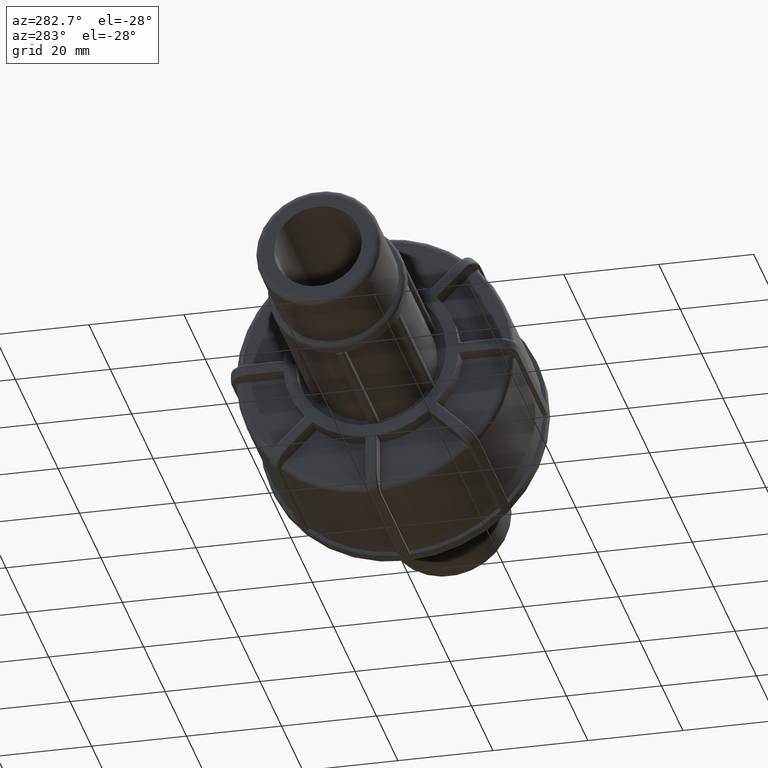
[diagram: clean part render]
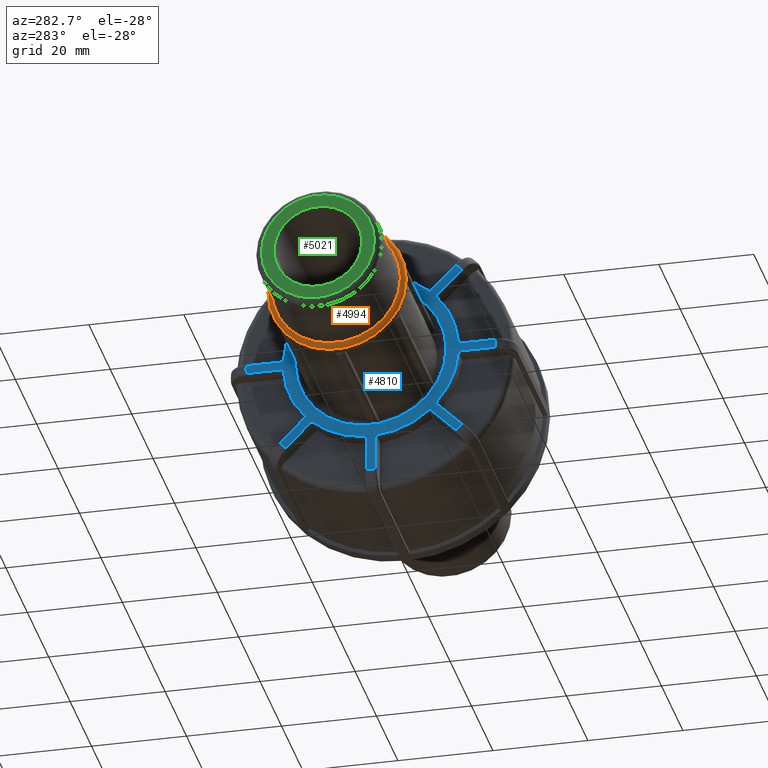
[diagram: same view with three faces highlighted in distinct colors, each labeled with its STEP entity id]
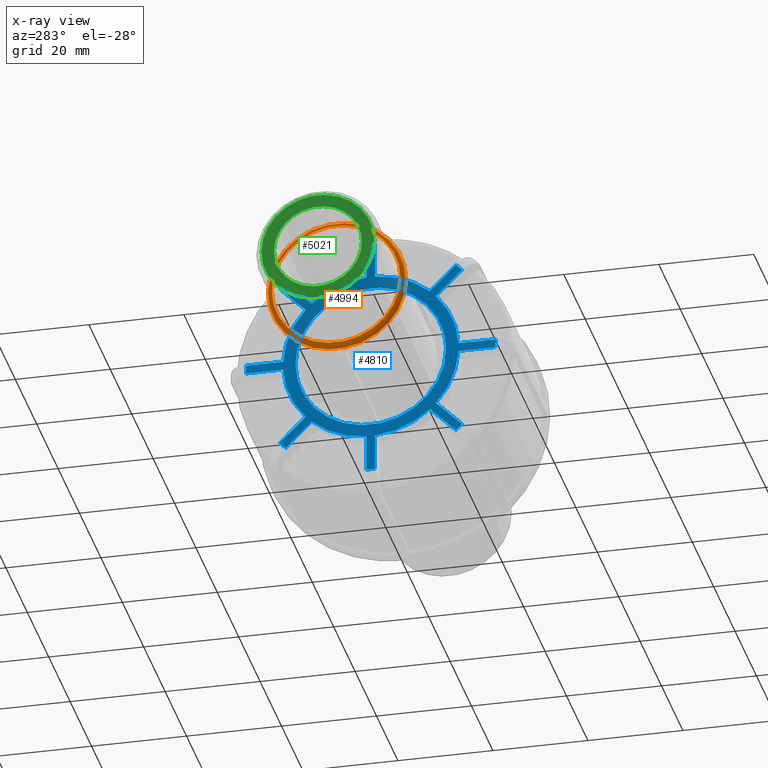
[diagram: x-ray of the same camera — body ghosted, the three highlighted faces saturated]
A machine part, auxiliary view with three faces highlighted in distinct colors.
The next image is the same camera in x-ray (body ghosted, the three faces saturated) — at least one of them is partly hidden behind the body in this view.
Their STEP definitions:

[orange] entity #4994 — the highlighted toroidal blend (fillet) surface has major radius 13.5426 mm and minor (blend) radius 1 mm.
#53=FACE_BOUND('',#759,.T.);
#181=TOROIDAL_SURFACE('',#5548,13.54255,1.);
#455=FACE_OUTER_BOUND('',#758,.T.);
#758=EDGE_LOOP('',(#4439));
#759=EDGE_LOOP('',(#4440));
#1853=CIRCLE('',#5549,13.54255);
#1854=CIRCLE('',#5550,14.54255);
#2335=VERTEX_POINT('',#9983);
#2336=VERTEX_POINT('',#9985);
#3069=EDGE_CURVE('',#2335,#2335,#1853,.T.);
#3070=EDGE_CURVE('',#2336,#2336,#1854,.T.);
#4439=ORIENTED_EDGE('',*,*,#3069,.T.);
#4440=ORIENTED_EDGE('',*,*,#3070,.T.);
#4994=ADVANCED_FACE('',(#455,#53),#181,.T.);
#5548=AXIS2_PLACEMENT_3D('',#9982,#6970,#6971);
#5549=AXIS2_PLACEMENT_3D('',#9984,#6972,#6973);
#5550=AXIS2_PLACEMENT_3D('',#9986,#6974,#6975);
#6970=DIRECTION('center_axis',(1.,0.,0.));
#6971=DIRECTION('ref_axis',(0.,0.,-1.));
#6972=DIRECTION('center_axis',(1.,0.,0.));
#6973=DIRECTION('ref_axis',(0.,-1.,1.83697019872103E-16));
#6974=DIRECTION('center_axis',(-1.,0.,0.));
#6975=DIRECTION('ref_axis',(0.,-1.,1.83697019872103E-16));
#9982=CARTESIAN_POINT('Origin',(-105.5,0.,0.));
#9983=CARTESIAN_POINT('',(-106.5,13.54255,-8.29242025489649E-16));
#9984=CARTESIAN_POINT('Origin',(-106.5,0.,0.));
#9985=CARTESIAN_POINT('',(-105.5,14.54255,-4.45237182723509E-15));
#9986=CARTESIAN_POINT('Origin',(-105.5,0.,0.));

[blue] entity #4810 — the highlighted planar face has unit normal (-1, 0, 0).
#52=FACE_BOUND('',#574,.T.);
#97=PLANE('',#5210);
#271=FACE_OUTER_BOUND('',#573,.T.);
#573=EDGE_LOOP('',(#3520,#3521,#3522,#3523,#3524,#3525,#3526,#3527,#3528,
#3529,#3530,#3531,#3532,#3533,#3534,#3535,#3536,#3537,#3538,#3539,#3540,
#3541,#3542,#3543,#3544,#3545,#3546,#3547,#3548,#3549,#3550,#3551));
#574=EDGE_LOOP('',(#3552));
#1011=LINE('',#7591,#1337);
#1029=LINE('',#7710,#1355);
#1030=LINE('',#7714,#1356);
#1031=LINE('',#7718,#1357);
#1032=LINE('',#7722,#1358);
#1033=LINE('',#7726,#1359);
#1034=LINE('',#7730,#1360);
#1035=LINE('',#7734,#1361);
#1036=LINE('',#7738,#1362);
#1037=LINE('',#7742,#1363);
#1038=LINE('',#7746,#1364);
#1039=LINE('',#7750,#1365);
#1040=LINE('',#7754,#1366);
#1041=LINE('',#7758,#1367);
#1042=LINE('',#7762,#1368);
#1043=LINE('',#7765,#1369);
#1337=VECTOR('',#6022,7.7478697261241);
#1355=VECTOR('',#6088,7.74786972612411);
#1356=VECTOR('',#6091,7.74786972612411);
#1357=VECTOR('',#6094,7.74786972612411);
#1358=VECTOR('',#6097,7.74786972612411);
#1359=VECTOR('',#6100,7.74786972612411);
#1360=VECTOR('',#6103,7.74786972612411);
#1361=VECTOR('',#6106,7.74786972612411);
#1362=VECTOR('',#6109,7.74786972612412);
#1363=VECTOR('',#6112,7.74786972612411);
#1364=VECTOR('',#6115,7.74786972612411);
#1365=VECTOR('',#6118,7.7478697261241);
#1366=VECTOR('',#6121,7.7478697261241);
#1367=VECTOR('',#6124,7.74786972612411);
#1368=VECTOR('',#6127,7.74786972612411);
#1369=VECTOR('',#6130,7.7478697261241);
#1667=CIRCLE('',#5209,26.25);
#1668=CIRCLE('',#5211,18.5087);
#1669=CIRCLE('',#5212,26.25);
#1670=CIRCLE('',#5213,18.5087);
#1671=CIRCLE('',#5214,26.25);
#1672=CIRCLE('',#5215,18.5087);
#1673=CIRCLE('',#5216,26.25);
#1674=CIRCLE('',#5217,18.5087);
#1675=CIRCLE('',#5218,26.25);
#1676=CIRCLE('',#5219,18.5087);
#1677=CIRCLE('',#5220,26.25);
#1678=CIRCLE('',#5221,18.5087);
#1679=CIRCLE('',#5222,26.25);
#1680=CIRCLE('',#5223,18.5087);
#1681=CIRCLE('',#5224,26.25);
#1682=CIRCLE('',#5225,18.5087);
#1683=CIRCLE('',#5226,15.8646);
#1994=VERTEX_POINT('',#7575);
#1997=VERTEX_POINT('',#7580);
#2032=VERTEX_POINT('',#7699);
#2033=VERTEX_POINT('',#7707);
#2034=VERTEX_POINT('',#7709);
#2035=VERTEX_POINT('',#7711);
#2036=VERTEX_POINT('',#7713);
#2037=VERTEX_POINT('',#7715);
#2038=VERTEX_POINT('',#7717);
#2039=VERTEX_POINT('',#7719);
#2040=VERTEX_POINT('',#7721);
#2041=VERTEX_POINT('',#7723);
#2042=VERTEX_POINT('',#7725);
#2043=VERTEX_POINT('',#7727);
#2044=VERTEX_POINT('',#7729);
#2045=VERTEX_POINT('',#7731);
#2046=VERTEX_POINT('',#7733);
#2047=VERTEX_POINT('',#7735);
#2048=VERTEX_POINT('',#7737);
#2049=VERTEX_POINT('',#7739);
#2050=VERTEX_POINT('',#7741);
#2051=VERTEX_POINT('',#7743);
#2052=VERTEX_POINT('',#7745);
#2053=VERTEX_POINT('',#7747);
#2054=VERTEX_POINT('',#7749);
#2055=VERTEX_POINT('',#7751);
#2056=VERTEX_POINT('',#7753);
#2057=VERTEX_POINT('',#7755);
#2058=VERTEX_POINT('',#7757);
#2059=VERTEX_POINT('',#7759);
#2060=VERTEX_POINT('',#7761);
#2061=VERTEX_POINT('',#7763);
#2062=VERTEX_POINT('',#7766);
#2538=EDGE_CURVE('',#1997,#1994,#1011,.T.);
#2576=EDGE_CURVE('',#1994,#2032,#1667,.T.);
#2578=EDGE_CURVE('',#2033,#1997,#1668,.T.);
#2579=EDGE_CURVE('',#2034,#2033,#1029,.T.);
#2580=EDGE_CURVE('',#2035,#2034,#1669,.T.);
#2581=EDGE_CURVE('',#2036,#2035,#1030,.T.);
#2582=EDGE_CURVE('',#2037,#2036,#1670,.T.);
#2583=EDGE_CURVE('',#2038,#2037,#1031,.T.);
#2584=EDGE_CURVE('',#2039,#2038,#1671,.T.);
#2585=EDGE_CURVE('',#2040,#2039,#1032,.T.);
#2586=EDGE_CURVE('',#2041,#2040,#1672,.T.);
#2587=EDGE_CURVE('',#2042,#2041,#1033,.T.);
#2588=EDGE_CURVE('',#2043,#2042,#1673,.T.);
#2589=EDGE_CURVE('',#2044,#2043,#1034,.T.);
#2590=EDGE_CURVE('',#2045,#2044,#1674,.T.);
#2591=EDGE_CURVE('',#2046,#2045,#1035,.T.);
#2592=EDGE_CURVE('',#2047,#2046,#1675,.T.);
#2593=EDGE_CURVE('',#2048,#2047,#1036,.T.);
#2594=EDGE_CURVE('',#2049,#2048,#1676,.T.);
#2595=EDGE_CURVE('',#2050,#2049,#1037,.T.);
#2596=EDGE_CURVE('',#2051,#2050,#1677,.T.);
#2597=EDGE_CURVE('',#2052,#2051,#1038,.T.);
#2598=EDGE_CURVE('',#2053,#2052,#1678,.T.);
#2599=EDGE_CURVE('',#2054,#2053,#1039,.T.);
#2600=EDGE_CURVE('',#2055,#2054,#1679,.T.);
#2601=EDGE_CURVE('',#2056,#2055,#1040,.T.);
#2602=EDGE_CURVE('',#2057,#2056,#1680,.T.);
#2603=EDGE_CURVE('',#2058,#2057,#1041,.T.);
#2604=EDGE_CURVE('',#2059,#2058,#1681,.T.);
#2605=EDGE_CURVE('',#2060,#2059,#1042,.T.);
#2606=EDGE_CURVE('',#2061,#2060,#1682,.T.);
#2607=EDGE_CURVE('',#2032,#2061,#1043,.T.);
#2608=EDGE_CURVE('',#2062,#2062,#1683,.T.);
#3520=ORIENTED_EDGE('',*,*,#2538,.F.);
#3521=ORIENTED_EDGE('',*,*,#2578,.F.);
#3522=ORIENTED_EDGE('',*,*,#2579,.F.);
#3523=ORIENTED_EDGE('',*,*,#2580,.F.);
#3524=ORIENTED_EDGE('',*,*,#2581,.F.);
#3525=ORIENTED_EDGE('',*,*,#2582,.F.);
#3526=ORIENTED_EDGE('',*,*,#2583,.F.);
#3527=ORIENTED_EDGE('',*,*,#2584,.F.);
#3528=ORIENTED_EDGE('',*,*,#2585,.F.);
#3529=ORIENTED_EDGE('',*,*,#2586,.F.);
#3530=ORIENTED_EDGE('',*,*,#2587,.F.);
#3531=ORIENTED_EDGE('',*,*,#2588,.F.);
#3532=ORIENTED_EDGE('',*,*,#2589,.F.);
#3533=ORIENTED_EDGE('',*,*,#2590,.F.);
#3534=ORIENTED_EDGE('',*,*,#2591,.F.);
#3535=ORIENTED_EDGE('',*,*,#2592,.F.);
#3536=ORIENTED_EDGE('',*,*,#2593,.F.);
#3537=ORIENTED_EDGE('',*,*,#2594,.F.);
#3538=ORIENTED_EDGE('',*,*,#2595,.F.);
#3539=ORIENTED_EDGE('',*,*,#2596,.F.);
#3540=ORIENTED_EDGE('',*,*,#2597,.F.);
#3541=ORIENTED_EDGE('',*,*,#2598,.F.);
#3542=ORIENTED_EDGE('',*,*,#2599,.F.);
#3543=ORIENTED_EDGE('',*,*,#2600,.F.);
#3544=ORIENTED_EDGE('',*,*,#2601,.F.);
#3545=ORIENTED_EDGE('',*,*,#2602,.F.);
#3546=ORIENTED_EDGE('',*,*,#2603,.F.);
#3547=ORIENTED_EDGE('',*,*,#2604,.F.);
#3548=ORIENTED_EDGE('',*,*,#2605,.F.);
#3549=ORIENTED_EDGE('',*,*,#2606,.F.);
#3550=ORIENTED_EDGE('',*,*,#2607,.F.);
#3551=ORIENTED_EDGE('',*,*,#2576,.F.);
#3552=ORIENTED_EDGE('',*,*,#2608,.T.);
#4810=ADVANCED_FACE('',(#271,#52),#97,.T.);
#5209=AXIS2_PLACEMENT_3D('',#7700,#6082,#6083);
#5210=AXIS2_PLACEMENT_3D('',#7706,#6084,#6085);
#5211=AXIS2_PLACEMENT_3D('',#7708,#6086,#6087);
#5212=AXIS2_PLACEMENT_3D('',#7712,#6089,#6090);
#5213=AXIS2_PLACEMENT_3D('',#7716,#6092,#6093);
#5214=AXIS2_PLACEMENT_3D('',#7720,#6095,#6096);
#5215=AXIS2_PLACEMENT_3D('',#7724,#6098,#6099);
#5216=AXIS2_PLACEMENT_3D('',#7728,#6101,#6102);
#5217=AXIS2_PLACEMENT_3D('',#7732,#6104,#6105);
#5218=AXIS2_PLACEMENT_3D('',#7736,#6107,#6108);
#5219=AXIS2_PLACEMENT_3D('',#7740,#6110,#6111);
#5220=AXIS2_PLACEMENT_3D('',#7744,#6113,#6114);
#5221=AXIS2_PLACEMENT_3D('',#7748,#6116,#6117);
#5222=AXIS2_PLACEMENT_3D('',#7752,#6119,#6120);
#5223=AXIS2_PLACEMENT_3D('',#7756,#6122,#6123);
#5224=AXIS2_PLACEMENT_3D('',#7760,#6125,#6126);
#5225=AXIS2_PLACEMENT_3D('',#7764,#6128,#6129);
#5226=AXIS2_PLACEMENT_3D('',#7767,#6131,#6132);
#6022=DIRECTION('',(0.,0.707106781186547,-0.707106781186548));
#6082=DIRECTION('center_axis',(1.,0.,0.));
#6083=DIRECTION('ref_axis',(0.,0.707106781186548,-0.707106781186548));
#6084=DIRECTION('center_axis',(-1.,0.,0.));
#6085=DIRECTION('ref_axis',(0.,0.,1.));
#6086=DIRECTION('center_axis',(1.,0.,0.));
#6087=DIRECTION('ref_axis',(0.,0.,-1.));
#6088=DIRECTION('',(0.,2.22044604925031E-16,1.));
#6089=DIRECTION('center_axis',(1.,0.,0.));
#6090=DIRECTION('ref_axis',(0.,5.84358089924088E-17,-1.));
#6091=DIRECTION('',(0.,-2.22044604925031E-16,-1.));
#6092=DIRECTION('center_axis',(1.,0.,0.));
#6093=DIRECTION('ref_axis',(0.,0.,-1.));
#6094=DIRECTION('',(0.,0.707106781186548,0.707106781186547));
#6095=DIRECTION('center_axis',(1.,0.,0.));
#6096=DIRECTION('ref_axis',(0.,-0.707106781186547,-0.707106781186548));
#6097=DIRECTION('',(0.,-0.707106781186548,-0.707106781186547));
#6098=DIRECTION('center_axis',(1.,0.,0.));
#6099=DIRECTION('ref_axis',(0.,0.,-1.));
#6100=DIRECTION('',(0.,1.,0.));
#6101=DIRECTION('center_axis',(1.,0.,0.));
#6102=DIRECTION('ref_axis',(0.,-1.,-5.84358089924088E-17));
#6103=DIRECTION('',(0.,-1.,0.));
#6104=DIRECTION('center_axis',(1.,0.,0.));
#6105=DIRECTION('ref_axis',(0.,0.,-1.));
#6106=DIRECTION('',(0.,0.707106781186547,-0.707106781186548));
#6107=DIRECTION('center_axis',(1.,0.,0.));
#6108=DIRECTION('ref_axis',(0.,-0.707106781186548,0.707106781186547));
#6109=DIRECTION('',(0.,-0.707106781186547,0.707106781186548));
#6110=DIRECTION('center_axis',(1.,0.,0.));
#6111=DIRECTION('ref_axis',(0.,0.,-1.));
#6112=DIRECTION('',(0.,0.,-1.));
#6113=DIRECTION('center_axis',(1.,0.,0.));
#6114=DIRECTION('ref_axis',(0.,-1.31838984174237E-16,1.));
#6115=DIRECTION('',(0.,0.,1.));
#6116=DIRECTION('center_axis',(1.,0.,0.));
#6117=DIRECTION('ref_axis',(0.,0.,-1.));
#6118=DIRECTION('',(0.,-0.707106781186548,-0.707106781186547));
#6119=DIRECTION('center_axis',(1.,0.,0.));
#6120=DIRECTION('ref_axis',(0.,0.707106781186548,0.707106781186548));
#6121=DIRECTION('',(0.,0.707106781186548,0.707106781186547));
#6122=DIRECTION('center_axis',(1.,0.,0.));
#6123=DIRECTION('ref_axis',(0.,0.,-1.));
#6124=DIRECTION('',(0.,-1.,2.22044604925031E-16));
#6125=DIRECTION('center_axis',(1.,0.,0.));
#6126=DIRECTION('ref_axis',(0.,1.,5.84358089924088E-17));
#6127=DIRECTION('',(0.,1.,-2.22044604925031E-16));
#6128=DIRECTION('center_axis',(1.,0.,0.));
#6129=DIRECTION('ref_axis',(0.,0.,-1.));
#6130=DIRECTION('',(0.,-0.707106781186547,0.707106781186548));
#6131=DIRECTION('center_axis',(1.,0.,0.));
#6132=DIRECTION('ref_axis',(0.,0.,-1.));
#7575=CARTESIAN_POINT('',(-74.1,17.9087580533706,-19.1921568612242));
#7580=CARTESIAN_POINT('',(-74.1,12.4301868302783,-13.7135856381319));
#7591=CARTESIAN_POINT('',(-74.1,9.59445871647926,-10.8778575243328));
#7699=CARTESIAN_POINT('',(-74.1,19.1921568612242,-17.9087580533706));
#7700=CARTESIAN_POINT('Origin',(-74.1,0.,0.));
#7706=CARTESIAN_POINT('Origin',(-74.1,18.5087,0.));
#7707=CARTESIAN_POINT('',(-74.1,0.907500000000003,-18.486438798211));
#7708=CARTESIAN_POINT('Origin',(-74.1,0.,0.));
#7709=CARTESIAN_POINT('',(-74.1,0.907500000000001,-26.2343085243351));
#7710=CARTESIAN_POINT('',(-74.1,0.907500000000003,-15.1128951561241));
#7711=CARTESIAN_POINT('',(-74.1,-0.907500000000001,-26.2343085243351));
#7712=CARTESIAN_POINT('Origin',(-74.1,0.,0.));
#7713=CARTESIAN_POINT('',(-74.1,-0.907499999999999,-18.486438798211));
#7714=CARTESIAN_POINT('',(-74.1,-0.907499999999997,-7.9323));
#7715=CARTESIAN_POINT('',(-74.1,-12.4301868302783,-13.7135856381319));
#7716=CARTESIAN_POINT('Origin',(-74.1,0.,0.));
#7717=CARTESIAN_POINT('',(-74.1,-17.9087580533706,-19.1921568612242));
#7718=CARTESIAN_POINT('',(-74.1,-5.4175562443299,-6.70095505218349));
#7719=CARTESIAN_POINT('',(-74.1,-19.1921568612242,-17.9087580533706));
#7720=CARTESIAN_POINT('Origin',(-74.1,0.,0.));
#7721=CARTESIAN_POINT('',(-74.1,-13.7135856381319,-12.4301868302783));
#7722=CARTESIAN_POINT('',(-74.1,-1.62350752433284,-0.340108716479262));
#7723=CARTESIAN_POINT('',(-74.1,-18.486438798211,-0.9075));
#7724=CARTESIAN_POINT('Origin',(-74.1,0.,0.));
#7725=CARTESIAN_POINT('',(-74.1,-26.2343085243351,-0.9075));
#7726=CARTESIAN_POINT('',(-74.1,-5.85854515612413,-0.9075));
#7727=CARTESIAN_POINT('',(-74.1,-26.2343085243351,0.907499999999997));
#7728=CARTESIAN_POINT('Origin',(-74.1,0.,0.));
#7729=CARTESIAN_POINT('',(-74.1,-18.486438798211,0.907499999999997));
#7730=CARTESIAN_POINT('',(-74.1,1.32205,0.907499999999997));
#7731=CARTESIAN_POINT('',(-74.1,-13.7135856381319,12.4301868302783));
#7732=CARTESIAN_POINT('Origin',(-74.1,0.,0.));
#7733=CARTESIAN_POINT('',(-74.1,-19.1921568612242,17.9087580533706));
#7734=CARTESIAN_POINT('',(-74.1,-6.70095505218349,5.4175562443299));
#7735=CARTESIAN_POINT('',(-74.1,-17.9087580533706,19.1921568612242));
#7736=CARTESIAN_POINT('Origin',(-74.1,0.,0.));
#7737=CARTESIAN_POINT('',(-74.1,-12.4301868302783,13.7135856381319));
#7738=CARTESIAN_POINT('',(-74.1,-0.34010871647926,1.62350752433284));
#7739=CARTESIAN_POINT('',(-74.1,-0.907500000000004,18.486438798211));
#7740=CARTESIAN_POINT('Origin',(-74.1,0.,0.));
#7741=CARTESIAN_POINT('',(-74.1,-0.907500000000004,26.2343085243351));
#7742=CARTESIAN_POINT('',(-74.1,-0.907500000000004,15.1128951561241));
#7743=CARTESIAN_POINT('',(-74.1,0.907499999999997,26.2343085243351));
#7744=CARTESIAN_POINT('Origin',(-74.1,0.,0.));
#7745=CARTESIAN_POINT('',(-74.1,0.907499999999997,18.486438798211));
#7746=CARTESIAN_POINT('',(-74.1,0.907499999999997,7.9323));
#7747=CARTESIAN_POINT('',(-74.1,12.4301868302783,13.7135856381319));
#7748=CARTESIAN_POINT('Origin',(-74.1,0.,0.));
#7749=CARTESIAN_POINT('',(-74.1,17.9087580533706,19.1921568612242));
#7750=CARTESIAN_POINT('',(-74.1,14.6719062443299,15.9553050521835));
#7751=CARTESIAN_POINT('',(-74.1,19.1921568612242,17.9087580533706));
#7752=CARTESIAN_POINT('Origin',(-74.1,0.,0.));
#7753=CARTESIAN_POINT('',(-74.1,13.7135856381319,12.4301868302783));
#7754=CARTESIAN_POINT('',(-74.1,10.8778575243328,9.59445871647926));
#7755=CARTESIAN_POINT('',(-74.1,18.486438798211,0.907500000000003));
#7756=CARTESIAN_POINT('Origin',(-74.1,0.,0.));
#7757=CARTESIAN_POINT('',(-74.1,26.2343085243351,0.907500000000001));
#7758=CARTESIAN_POINT('',(-74.1,24.3672451561241,0.907500000000001));
#7759=CARTESIAN_POINT('',(-74.1,26.2343085243351,-0.907500000000001));
#7760=CARTESIAN_POINT('Origin',(-74.1,0.,0.));
#7761=CARTESIAN_POINT('',(-74.1,18.486438798211,-0.907499999999999));
#7762=CARTESIAN_POINT('',(-74.1,17.18665,-0.907499999999999));
#7763=CARTESIAN_POINT('',(-74.1,13.7135856381319,-12.4301868302783));
#7764=CARTESIAN_POINT('Origin',(-74.1,0.,0.));
#7765=CARTESIAN_POINT('',(-74.1,15.9553050521835,-14.6719062443299));
#7766=CARTESIAN_POINT('',(-74.1,15.8646,0.));
#7767=CARTESIAN_POINT('Origin',(-74.1,0.,0.));

[green] entity #5021 — the highlighted planar face has unit normal (-1, 0, 0).
#61=FACE_BOUND('',#794,.T.);
#155=PLANE('',#5597);
#482=FACE_OUTER_BOUND('',#793,.T.);
#793=EDGE_LOOP('',(#4577));
#794=EDGE_LOOP('',(#4578));
#1873=CIRCLE('',#5595,11.89845);
#1875=CIRCLE('',#5598,9.25434999999999);
#2342=VERTEX_POINT('',#10037);
#2344=VERTEX_POINT('',#10042);
#3090=EDGE_CURVE('',#2342,#2342,#1873,.T.);
#3092=EDGE_CURVE('',#2344,#2344,#1875,.T.);
#4577=ORIENTED_EDGE('',*,*,#3090,.F.);
#4578=ORIENTED_EDGE('',*,*,#3092,.T.);
#5021=ADVANCED_FACE('',(#482,#61),#155,.T.);
#5595=AXIS2_PLACEMENT_3D('',#10038,#7065,#7066);
#5597=AXIS2_PLACEMENT_3D('',#10041,#7069,#7070);
#5598=AXIS2_PLACEMENT_3D('',#10043,#7071,#7072);
#7065=DIRECTION('center_axis',(1.,0.,0.));
#7066=DIRECTION('ref_axis',(0.,-1.,1.83697019872103E-16));
#7069=DIRECTION('center_axis',(-1.,0.,0.));
#7070=DIRECTION('ref_axis',(0.,0.,1.));
#7071=DIRECTION('center_axis',(1.,0.,0.));
#7072=DIRECTION('ref_axis',(0.,0.,-1.));
#10037=CARTESIAN_POINT('',(-123.5,11.89845,-7.28569935365741E-16));
#10038=CARTESIAN_POINT('Origin',(-123.5,0.,0.));
#10041=CARTESIAN_POINT('Origin',(-123.5,13.2205,0.));
#10042=CARTESIAN_POINT('',(-123.5,9.25434999999999,0.));
#10043=CARTESIAN_POINT('Origin',(-123.5,0.,0.));